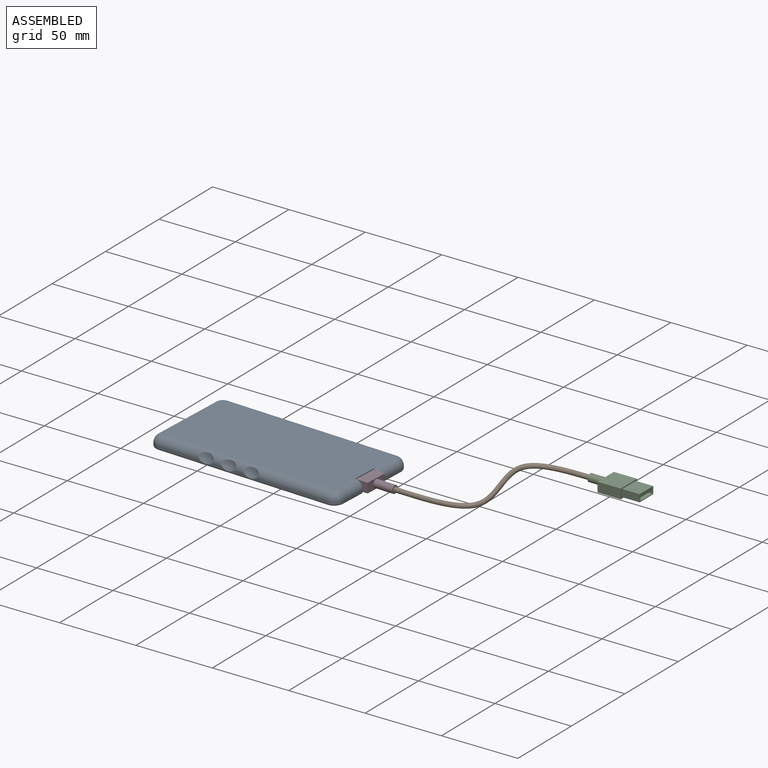
[diagram: assembled view]
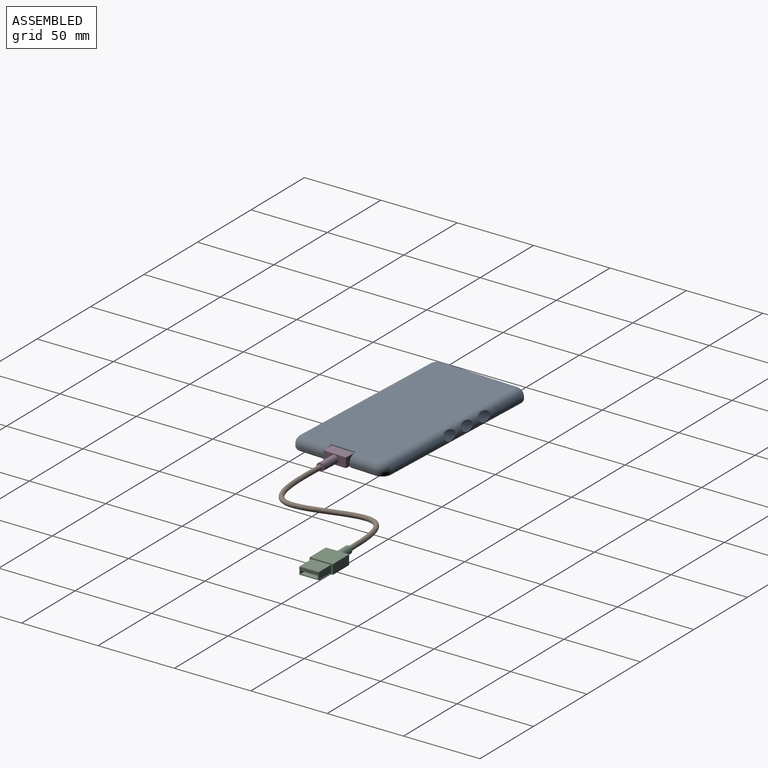
[diagram: assembled view, second angle]
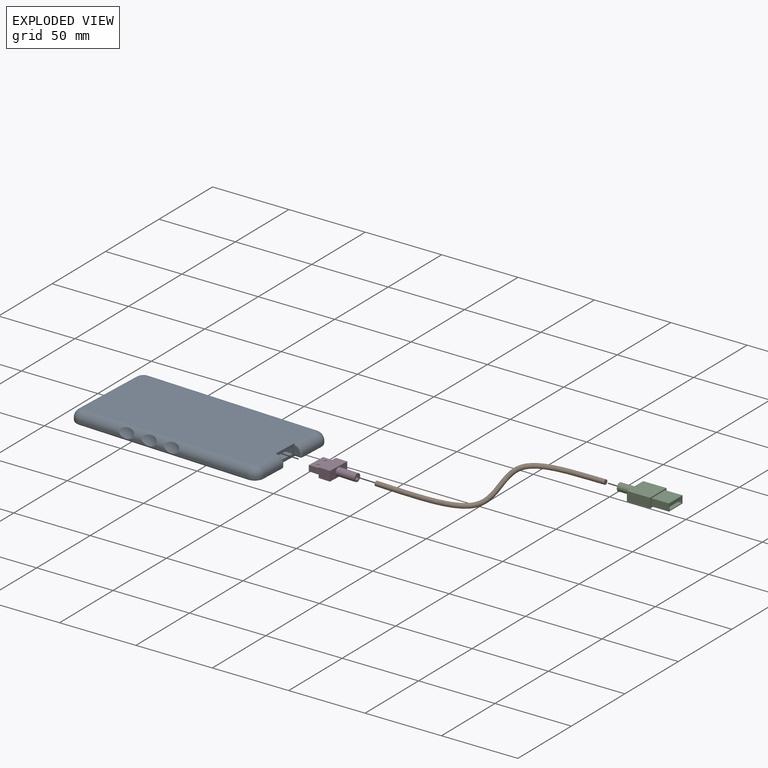
[diagram: exploded view]
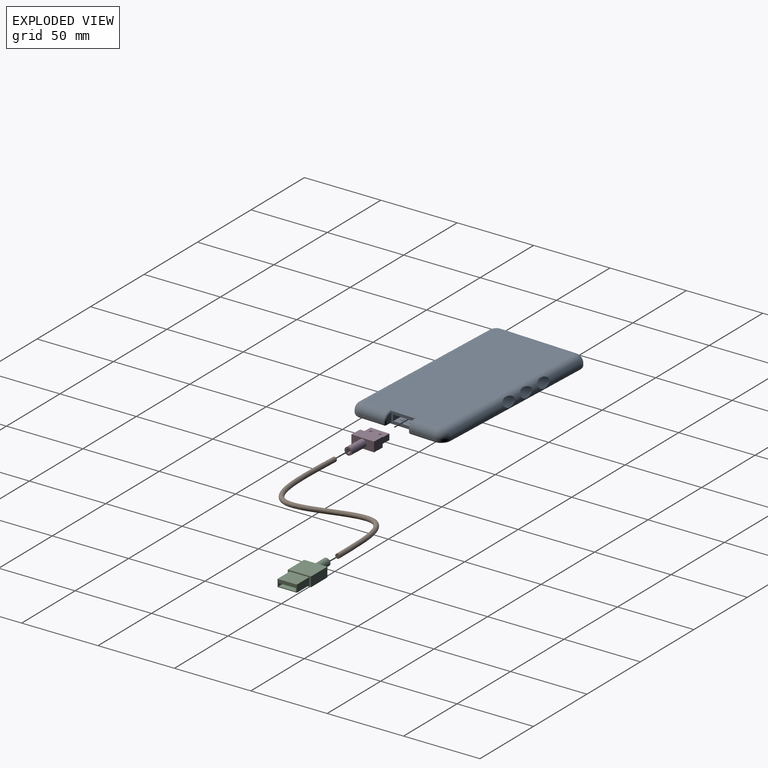
[diagram: exploded view, second angle]
ASSEMBLY  parts=4 mates=3
PART A: 72 faces, bbox 128x8x65.7 mm
  f0: plane 32.18x1.27mm, normal (0,0,-1), area 37.6mm2, adj f16,f25,f33,f71
  f1: plane 15.24x1.27mm, normal (0,0,-1), area 12.8mm2, adj f25,f33,f69,f70
  f2: plane 15.24x1.27mm, normal (0,0,-1), area 12.8mm2, adj f25,f33,f69,f71
  f3: plane 15.24x1.27mm, normal (0,0,1), area 12.8mm2, adj f6,f32,f66,f68
  f4: plane 51.65x1.27mm, normal (0,0,1), area 62.3mm2, adj f6,f20,f32,f67
  f5: plane 15.24x1.27mm, normal (0,0,1), area 12.8mm2, adj f6,f32,f66,f67
  f6: cylinder r=5.08mm len=114.3mm, axis (1,0,0), area 778.7mm2, adj f3,f4,f5,f13,f21,f23,f26,f66
  f7: plane 12.7x3.81mm, normal (1,0,0), area 42.6mm2, adj f39,f40,f41,f42,f61,f62,f63,f64
  f8: plane 17.78x7.62mm, normal (1,0,0), area 69.1mm2, adj f10,f21,f37,f38,f39,f40,f41,f42
  f9: plane 16.51x1.27mm, normal (1,0,0), area 21mm2, adj f18,f28,f36,f44
  f10: plane 124.46x60.96mm, normal (0,1,0), area 7497.2mm2, adj f8,f12,f29,f30,f31,f32,f33,f34
  f11: cylinder r=5.08mm len=16.51mm, axis (0,0,-1), area 131.7mm2, adj f19,f21,f26,f47
  f12: cylinder r=1.27mm len=16.51mm, axis (0,0,1), area 32.9mm2, adj f10,f19,f34,f50
  f13: plane 32.17x1.27mm, normal (0,0,1), area 37.6mm2, adj f6,f14,f32,f68
  f14: cylinder r=6.35mm len=6.35mm, axis (0,1,0), area 12.7mm2, adj f13,f15,f23,f30
  f15: plane 50.8x1.27mm, normal (-1,0,0), area 64.5mm2, adj f14,f16,f22,f29
  f16: cylinder r=6.35mm len=6.35mm, axis (0,1,0), area 12.7mm2, adj f0,f15,f24,f31
  f17: plane 51.64x1.27mm, normal (0,0,-1), area 62.3mm2, adj f18,f25,f33,f70
  f18: cylinder r=6.35mm len=6.35mm, axis (0,1,0), area 12.7mm2, adj f9,f17,f27,f35
  f19: plane 16.51x1.27mm, normal (1,0,0), area 21mm2, adj f11,f12,f20,f48
  f20: cylinder r=6.35mm len=6.35mm, axis (0,1,0), area 12.7mm2, adj f4,f19,f26,f34
  f21: plane 116.84x53.34mm, normal (0,-1,0), area 6230.9mm2, adj f6,f8,f11,f22,f23,f24,f25,f26
  f22: cylinder r=5.08mm len=50.8mm, axis (0,0,1), area 405.4mm2, adj f15,f21,f23,f24
  f23: torus R=1.27mm, axis (0,-1,0), area 56.5mm2, adj f6,f14,f21,f22
  f24: torus R=1.27mm, axis (0,-1,0), area 56.5mm2, adj f16,f21,f22,f25
  f25: cylinder r=5.08mm len=114.3mm, axis (-1,0,0), area 778.7mm2, adj f0,f1,f2,f17,f21,f24,f27,f69
  f26: torus R=1.27mm, axis (0,-1,0), area 56.5mm2, adj f6,f11,f20,f21
  f27: torus R=1.27mm, axis (0,-1,0), area 56.5mm2, adj f18,f21,f25,f28
  f28: cylinder r=5.08mm len=16.51mm, axis (0,0,-1), area 131.7mm2, adj f9,f21,f27,f43
  f29: cylinder r=1.27mm len=50.8mm, axis (0,0,-1), area 101.3mm2, adj f10,f15,f30,f31
  f30: torus R=5.08mm, axis (0,-1,0), area 18.5mm2, adj f10,f14,f29,f32
  f31: torus R=5.08mm, axis (0,-1,0), area 18.5mm2, adj f10,f16,f29,f33
  f32: cylinder r=1.27mm len=114.3mm, axis (-1,0,0), area 228mm2, adj f3,f4,f5,f10,f13,f30,f34
  f33: cylinder r=1.27mm len=114.3mm, axis (1,0,0), area 228mm2, adj f0,f1,f2,f10,f17,f31,f35
  f34: torus R=5.08mm, axis (0,-1,0), area 18.5mm2, adj f10,f12,f20,f32
  f35: torus R=5.08mm, axis (0,-1,0), area 18.5mm2, adj f10,f18,f33,f36
  f36: cylinder r=1.27mm len=16.51mm, axis (0,0,1), area 32.9mm2, adj f9,f10,f35,f46
  f37: plane 5.08x3.81mm, normal (0,0,-1), area 16.2mm2, adj f8,f47,f48,f49
  f38: plane 5.08x3.81mm, normal (0,0,1), area 16.2mm2, adj f8,f43,f44,f45
  f39: plane 7.62x3.81mm, normal (0,0,-1), area 29mm2, adj f7,f8,f40,f42
  f40: plane 12.7x7.62mm, normal (0,1,0), area 96.8mm2, adj f7,f8,f39,f41
  f41: plane 7.62x3.81mm, normal (0,0,1), area 29mm2, adj f7,f8,f40,f42
  f42: plane 12.7x7.62mm, normal (0,-1,0), area 92.1mm2, adj f7,f8,f39,f41,f51,f52,f53,f54
  f43: torus R=3.81mm, axis (0,0,-1), area 14.5mm2, adj f8,f28,f38,f44
  f44: cylinder r=1.27mm len=1.27mm, axis (0,1,0), area 2.5mm2, adj f9,f38,f43,f46
  f45: cylinder r=1.27mm len=3.81mm, axis (1,0,0), area 7.6mm2, adj f8,f10,f38,f46
  f46: sphere r=1.27mm, area 2.5mm2, adj f36,f44,f45
  f47: torus R=3.81mm, axis (0,0,-1), area 14.5mm2, adj f8,f11,f37,f48
  f48: cylinder r=1.27mm len=1.27mm, axis (0,-1,0), area 2.5mm2, adj f19,f37,f47,f50
  f49: cylinder r=1.27mm len=3.81mm, axis (-1,0,0), area 7.6mm2, adj f8,f10,f37,f50
  f50: sphere r=1.27mm, area 2.5mm2, adj f12,f48,f49
  f51: plane 1.52x0.38mm, normal (0,0,1), area 0.6mm2, adj f42,f52,f54,f55
  f52: plane 1.52x0.38mm, normal (-1,0,0), area 0.6mm2, adj f42,f51,f53,f55
  f53: plane 1.52x0.38mm, normal (0,0,-1), area 0.6mm2, adj f42,f52,f54,f55
  f54: plane 1.52x0.38mm, normal (1,0,0), area 0.6mm2, adj f42,f51,f53,f55
  f55: plane 1.52x1.52mm, normal (0,-1,0), area 2.3mm2, adj f51,f52,f53,f54
  f56: plane 1.52x0.38mm, normal (0,0,-1), area 0.6mm2, adj f42,f57,f59,f60
  f57: plane 1.52x0.38mm, normal (1,0,0), area 0.6mm2, adj f42,f56,f58,f60
  f58: plane 1.52x0.38mm, normal (0,0,1), area 0.6mm2, adj f42,f57,f59,f60
  f59: plane 1.52x0.38mm, normal (-1,0,0), area 0.6mm2, adj f42,f56,f58,f60
  f60: plane 1.52x1.52mm, normal (0,-1,0), area 2.3mm2, adj f56,f57,f58,f59
  f61: plane 4.57x1.27mm, normal (0,-1,0), area 5.8mm2, adj f7,f62,f64,f65
  f62: plane 1.27x1.27mm, normal (0,0,-1), area 1.6mm2, adj f7,f61,f63,f65
  f63: plane 4.57x1.27mm, normal (0,1,0), area 5.8mm2, adj f7,f62,f64,f65
  f64: plane 1.27x1.27mm, normal (0,0,1), area 1.6mm2, adj f7,f61,f63,f65
  f65: plane 4.57x1.27mm, normal (1,0,0), area 5.8mm2, adj f61,f62,f63,f64
  f66: sphere r=9.21mm, area 51.6mm2, adj f3,f5,f6
  f67: sphere r=9.21mm, area 51.6mm2, adj f4,f5,f6
  f68: sphere r=9.21mm, area 51.6mm2, adj f3,f6,f13
  f69: sphere r=9.21mm, area 51.6mm2, adj f1,f2,f25
  f70: sphere r=9.21mm, area 51.6mm2, adj f1,f17,f25
  f71: sphere r=9.21mm, area 51.6mm2, adj f0,f2,f25
PART B: 5 faces, bbox 100x6.1x76.3 mm
  f0: bspline ~77.1x76.26mm, area 1386.9mm2, adj f1,f3
  f1: cylinder r=1.52mm len=10.16mm, axis (-1,0,0), area 97.3mm2, adj f0,f2
  f2: plane 3.05x3.05mm, normal (1,0,0), area 7.3mm2, adj f1
  f3: cylinder r=1.52mm len=12.82mm, axis (1,0,-0.04), area 121.6mm2, adj f0,f4
  f4: plane 3.05x3.05mm, normal (-1,0,0.04), area 7.3mm2, adj f3
PART C: 30 faces, bbox 15.2x36.8x6.4 mm
  f0: plane 12.7x11.43mm, normal (0,0,1), area 130.3mm2, adj f2,f3,f13,f14,f22,f23,f24,f25
  f1: plane 11.46x11.43mm, normal (0,0,-1), area 116.1mm2, adj f2,f16,f17,f21,f22,f23,f24,f25
  f2: plane 12.7x4.83mm, normal (0,-1,0), area 17.7mm2, adj f0,f1,f13,f14,f15,f16,f17,f18
  f3: plane 15.24x6.35mm, normal (0,-1,0), area 35.5mm2, adj f0,f6,f7,f8,f9,f13,f14,f15
  f4: cylinder r=2.54mm len=10.16mm, axis (0,1,0), area 162.1mm2, adj f5,f10
  f5: plane 15.24x6.35mm, normal (0,1,0), area 76.5mm2, adj f4,f6,f7,f8,f9
  f6: plane 15.24x15.24mm, normal (0,0,-1), area 232.3mm2, adj f3,f5,f7,f9
  f7: plane 15.24x6.35mm, normal (-1,0,0), area 96.8mm2, adj f3,f5,f6,f8
  f8: plane 15.24x15.24mm, normal (0,0,1), area 232.3mm2, adj f3,f5,f7,f9
  f9: plane 15.24x6.35mm, normal (1,0,0), area 96.8mm2, adj f3,f5,f6,f8
  f10: plane 5.08x5.08mm, normal (0,1,0), area 13mm2, adj f4,f12
  f11: plane 3.05x3.05mm, normal (0,1,0), area 7.3mm2, adj f12
  f12: cylinder r=1.52mm len=10.16mm, axis (0,1,0), area 97.3mm2, adj f10,f11
  f13: plane 11.43x4.83mm, normal (1,0,0), area 55.2mm2, adj f0,f2,f3,f15
  f14: plane 11.43x4.83mm, normal (-1,0,0), area 55.2mm2, adj f0,f2,f3,f15
  f15: plane 12.7x11.43mm, normal (0,0,-1), area 145.2mm2, adj f2,f3,f13,f14
  f16: plane 11.46x3.81mm, normal (-1,0,0), area 22.3mm2, adj f1,f2,f18,f19,f20,f21
  f17: plane 11.46x3.81mm, normal (1,0,0), area 22.3mm2, adj f1,f2,f18,f19,f20,f21
  f18: plane 11.43x0.25mm, normal (0,0,1), area 2.9mm2, adj f2,f16,f17,f19
  f19: plane 11.43x1.91mm, normal (0,-1,0), area 21.8mm2, adj f16,f17,f18,f20
  f20: plane 11.43x11.2mm, normal (0,0,1), area 128mm2, adj f16,f17,f19,f21
  f21: plane 11.43x1.91mm, normal (0,-1,0), area 21.8mm2, adj f1,f16,f17,f20
  f22: plane 2.91x0.51mm, normal (-1,0,0), area 1.5mm2, adj f0,f1,f23,f25
  f23: plane 2.56x0.51mm, normal (0,-1,0), area 1.3mm2, adj f0,f1,f22,f24
  f24: plane 2.91x0.51mm, normal (1,0,0), area 1.5mm2, adj f0,f1,f23,f25
  f25: plane 2.56x0.51mm, normal (0,1,0), area 1.3mm2, adj f0,f1,f22,f24
  f26: plane 2.91x0.51mm, normal (1,0,0), area 1.5mm2, adj f0,f1,f27,f29
  f27: plane 2.54x0.51mm, normal (0,1,0), area 1.3mm2, adj f0,f1,f26,f28
  f28: plane 2.91x0.51mm, normal (-1,0,0), area 1.5mm2, adj f0,f1,f27,f29
  f29: plane 2.54x0.51mm, normal (0,-1,0), area 1.3mm2, adj f0,f1,f26,f28
PART D: 30 faces, bbox 15.2x27.9x6.4 mm
  f0: plane 12.7x7.62mm, normal (0,0,1), area 92.1mm2, adj f1,f2,f12,f13,f20,f21,f22,f23
  f1: plane 12.7x3.81mm, normal (0,-1,0), area 42.6mm2, adj f0,f12,f13,f14,f15,f16,f17,f18
  f2: plane 15.24x6.35mm, normal (0,-1,0), area 48.4mm2, adj f0,f7,f8,f9,f10,f12,f13,f14
  f3: cylinder r=1.4mm len=12.7mm, axis (0,1,0), area 111.5mm2, adj f5,f11
  f4: cylinder r=2.54mm len=12.7mm, axis (0,1,0), area 202.5mm2, adj f5,f6
  f5: plane 5.08x5.08mm, normal (0,1,0), area 14.1mm2, adj f3,f4
  f6: plane 15.24x6.35mm, normal (0,1,0), area 76.5mm2, adj f4,f7,f8,f9,f10
  f7: plane 7.62x6.35mm, normal (-1,0,0), area 48.4mm2, adj f2,f6,f8,f10
  f8: plane 15.24x7.62mm, normal (0,0,1), area 116.1mm2, adj f2,f6,f7,f9
  f9: plane 7.62x6.35mm, normal (1,0,0), area 48.4mm2, adj f2,f6,f8,f10
  f10: plane 15.24x7.62mm, normal (0,0,-1), area 116.1mm2, adj f2,f6,f7,f9
  f11: plane 2.79x2.79mm, normal (0,1,0), area 6.1mm2, adj f3
  f12: plane 7.62x3.81mm, normal (1,0,0), area 29mm2, adj f0,f1,f2,f14
  f13: plane 7.62x3.81mm, normal (-1,0,0), area 29mm2, adj f0,f1,f2,f14
  f14: plane 12.7x7.62mm, normal (0,0,-1), area 96.8mm2, adj f1,f2,f12,f13
  f15: plane 1.27x1.27mm, normal (-1,0,0), area 1.6mm2, adj f1,f16,f18,f19
  f16: plane 4.57x1.27mm, normal (0,0,-1), area 5.8mm2, adj f1,f15,f17,f19
  f17: plane 1.27x1.27mm, normal (1,0,0), area 1.6mm2, adj f1,f16,f18,f19
  f18: plane 4.57x1.27mm, normal (0,0,1), area 5.8mm2, adj f1,f15,f17,f19
  f19: plane 4.57x1.27mm, normal (0,-1,0), area 5.8mm2, adj f15,f16,f17,f18
  f20: plane 1.52x0.38mm, normal (1,0,0), area 0.6mm2, adj f0,f21,f23,f24
  f21: plane 1.52x0.38mm, normal (0,1,0), area 0.6mm2, adj f0,f20,f22,f24
  f22: plane 1.52x0.38mm, normal (-1,0,0), area 0.6mm2, adj f0,f21,f23,f24
  f23: plane 1.52x0.38mm, normal (0,-1,0), area 0.6mm2, adj f0,f20,f22,f24
  f24: plane 1.52x1.52mm, normal (0,0,1), area 2.3mm2, adj f20,f21,f22,f23
  f25: plane 1.52x0.38mm, normal (0,1,0), area 0.6mm2, adj f0,f26,f28,f29
  f26: plane 1.52x0.38mm, normal (-1,0,0), area 0.6mm2, adj f0,f25,f27,f29
  f27: plane 1.52x0.38mm, normal (0,-1,0), area 0.6mm2, adj f0,f26,f28,f29
  f28: plane 1.52x0.38mm, normal (1,0,0), area 0.6mm2, adj f0,f25,f27,f29
  f29: plane 1.52x1.52mm, normal (0,0,1), area 2.3mm2, adj f25,f26,f27,f28
PLACE A rot(axis=(-1,0.02,-0.02),90deg) t=(-168.4,-68.93,-3.81)mm
PLACE B rot(axis=(-1,0,0),90deg) t=(-12.7,0,0)mm
PLACE C rot(axis=(0.71,-0.71,0),180deg) t=(-7.62,0,0)mm
PLACE D rot(axis=(0,0,-1),92.5deg) t=(-89.74,-72.43,0)mm
MATE fastened B.f1 <-> C.f4  axis (1,0,0) through (-2.54,0,0)mm
MATE fastened D.f3 <-> A.f65  axis (-1,0.04,0) through (-116.38,-71.24,0)mm
MATE fastened D.f4 <-> B.f3  axis (1,-0.04,0) through (-102.42,-71.86,0)mm
